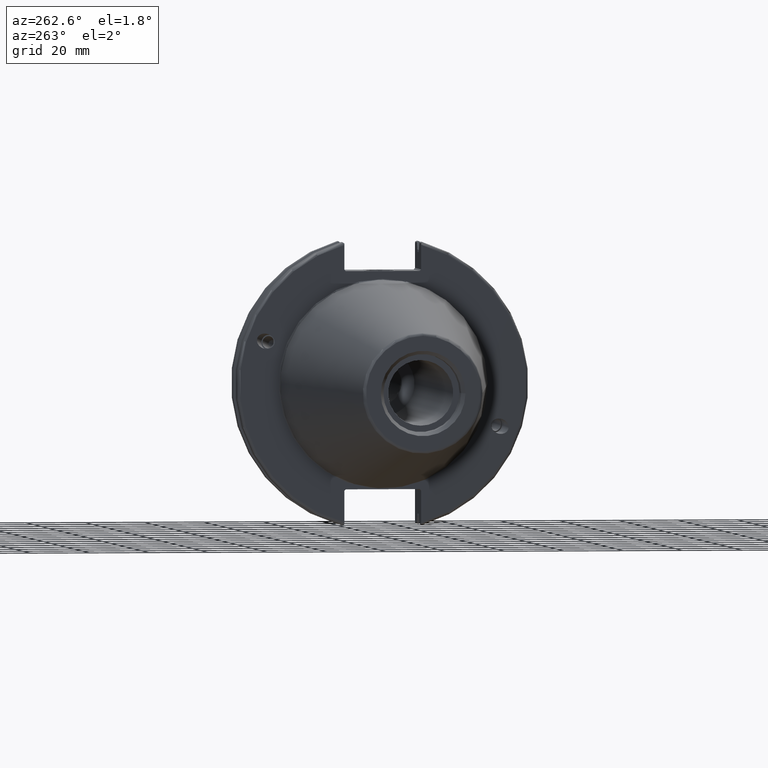
[diagram: clean part render]
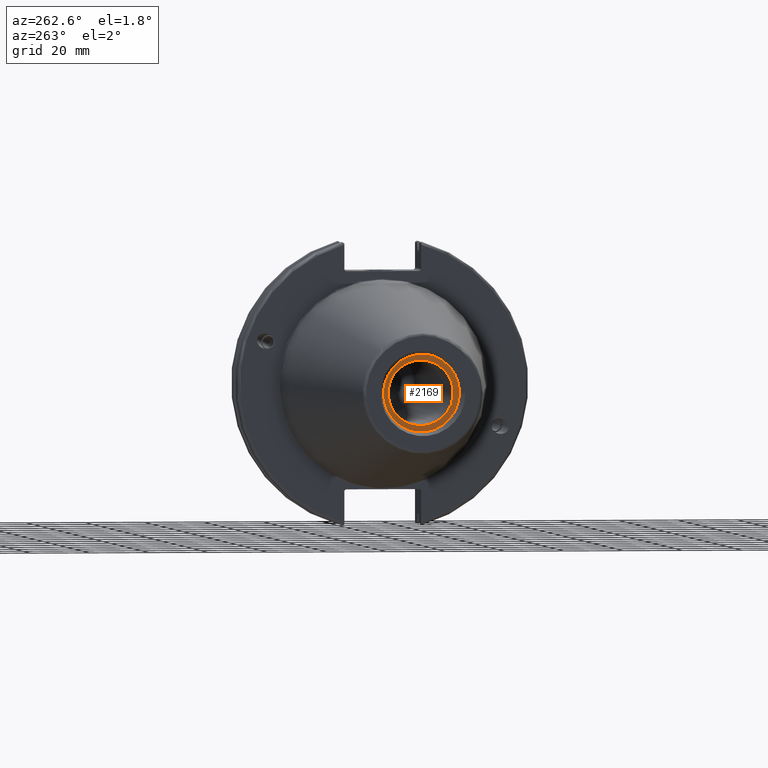
[diagram: same view with one face highlighted and labeled with its STEP entity id]
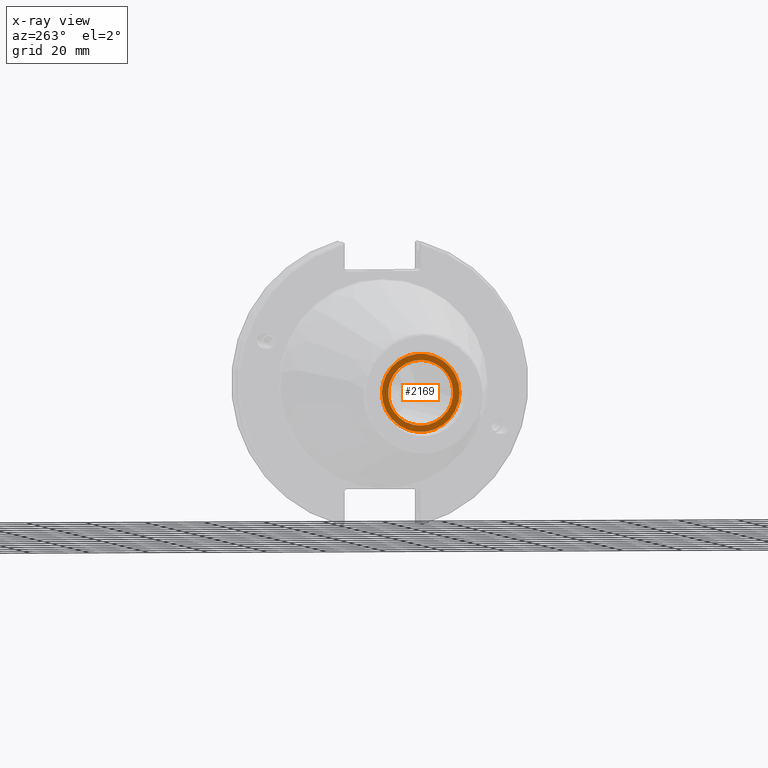
[diagram: x-ray of the same camera — body ghosted, the highlighted face saturated]
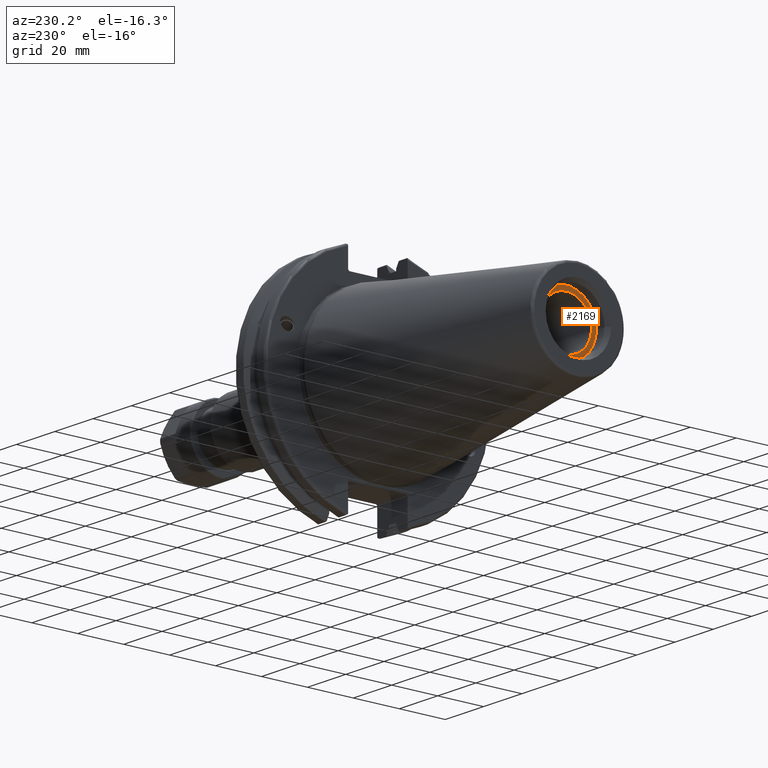
[diagram: same view with one face highlighted and labeled with its STEP entity id]
A machine part, auxiliary view. The second image highlights one B-rep face of the part: STEP entity #2169.
The next image is the same camera in x-ray: the body ghosted, the highlighted face saturated — about 0% of this face is hidden behind the body in this view.
A second angle (auxiliary view) of the same face is appended — the face is thin or edge-on in the first view.
In plain terms, the highlighted planar face has unit normal (-1, 0, 0).
Its self-contained STEP definition (entity closure, byte-faithful):
#201=FACE_BOUND('',#495,.T.);
#244=PLANE('',#2451);
#352=FACE_OUTER_BOUND('',#494,.T.);
#494=EDGE_LOOP('',(#1897));
#495=EDGE_LOOP('',(#1898));
#852=CIRCLE('',#2376,10.9855);
#880=CIRCLE('',#2447,13.1);
#1010=VERTEX_POINT('',#3789);
#1065=VERTEX_POINT('',#4096);
#1251=EDGE_CURVE('',#1010,#1010,#852,.T.);
#1348=EDGE_CURVE('',#1065,#1065,#880,.T.);
#1897=ORIENTED_EDGE('',*,*,#1348,.F.);
#1898=ORIENTED_EDGE('',*,*,#1251,.T.);
#2169=ADVANCED_FACE('',(#352,#201),#244,.T.);
#2376=AXIS2_PLACEMENT_3D('',#3790,#2770,#2771);
#2447=AXIS2_PLACEMENT_3D('',#4097,#2957,#2958);
#2451=AXIS2_PLACEMENT_3D('',#4105,#2968,#2969);
#2770=DIRECTION('center_axis',(1.,0.,0.));
#2771=DIRECTION('ref_axis',(0.,0.,1.));
#2957=DIRECTION('center_axis',(1.,0.,0.));
#2958=DIRECTION('ref_axis',(0.,0.,-1.));
#2968=DIRECTION('center_axis',(-1.,0.,0.));
#2969=DIRECTION('ref_axis',(0.,0.,1.));
#3789=CARTESIAN_POINT('',(-95.25,1.34533574120333E-15,-10.9855));
#3790=CARTESIAN_POINT('Origin',(-95.25,0.,0.));
#4096=CARTESIAN_POINT('',(-95.25,-13.1,-1.60428730688303E-15));
#4097=CARTESIAN_POINT('Origin',(-95.25,0.,0.));
#4105=CARTESIAN_POINT('Origin',(-95.25,13.1,0.));